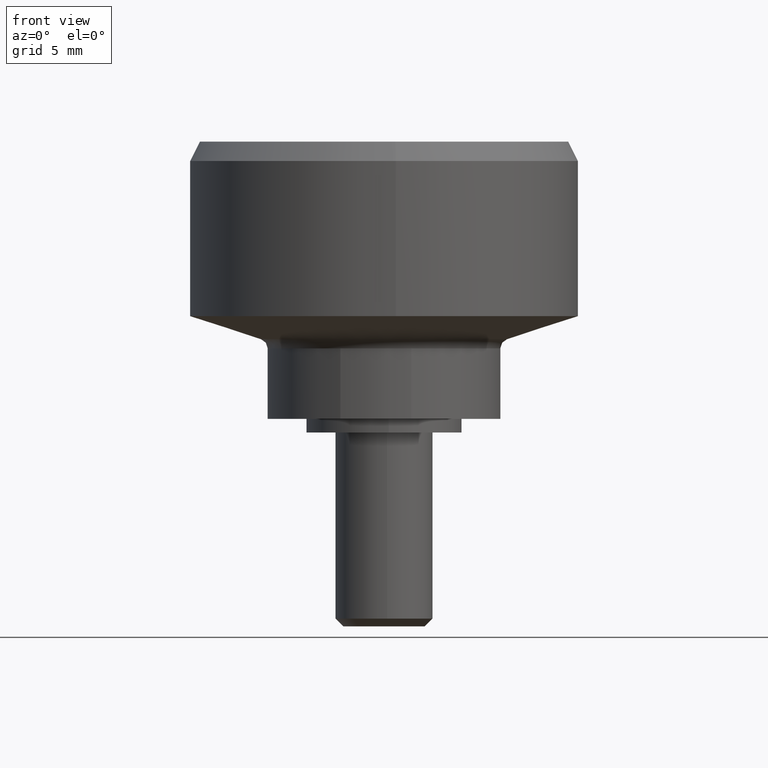
[diagram: clean part render]
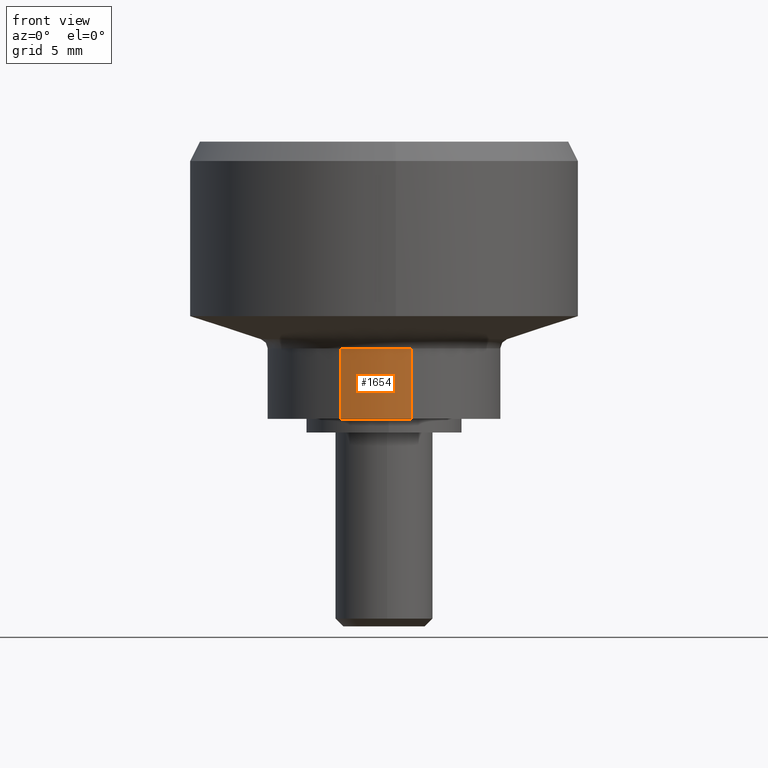
[diagram: same view with one face highlighted and labeled with its STEP entity id]
A machine part, front view. The second image highlights one B-rep face of the part: STEP entity #1654.
In plain terms, the highlighted face is a freeform B-spline surface patch.
Its self-contained STEP definition (entity closure, byte-faithful):
#1465=CARTESIAN_POINT('',(-2.250409667842005,-5.561983128963910,4.336761000009336));
#1466=VERTEX_POINT('',#1465);
#1529=CARTESIAN_POINT('',(1.400665940389359,-5.834221021129725,4.336761000000011));
#1530=VERTEX_POINT('',#1529);
#1544=CARTESIAN_POINT('',(1.400666015609380,-5.834221003071164,0.700004000000106));
#1545=VERTEX_POINT('',#1544);
#1546=CARTESIAN_POINT('',(1.400665940389359,-5.834221021129725,4.336761000000011));
#1547=CARTESIAN_POINT('',(1.400666015609380,-5.834221003071164,0.700004000000106));
#1548=QUASI_UNIFORM_CURVE('',1,(#1546,#1547),.UNSPECIFIED.,.F.,.U.);
#1549=EDGE_CURVE('',#1530,#1545,#1548,.T.);
#1583=CARTESIAN_POINT('',(-2.250410441982353,-5.561982815742546,0.700004000000106));
#1584=VERTEX_POINT('',#1583);
#1598=CARTESIAN_POINT('',(-2.250409667842005,-5.561983128963910,4.336761000009336));
#1599=CARTESIAN_POINT('',(-2.250410441982353,-5.561982815742546,0.700004000000106));
#1600=QUASI_UNIFORM_CURVE('',1,(#1598,#1599),.UNSPECIFIED.,.F.,.U.);
#1601=EDGE_CURVE('',#1466,#1584,#1600,.T.);
#1606=CARTESIAN_POINT('',(1.400672183135433,-5.834219522386058,4.427679925087543));
#1607=CARTESIAN_POINT('',(-0.468478970934370,-6.282963011988304,4.427679925087543));
#1608=CARTESIAN_POINT('',(-2.250411537958607,-5.561982372304211,4.427679925087543));
#1609=CARTESIAN_POINT('',(1.400672183135433,-5.834219522386058,0.606812101872920));
#1610=CARTESIAN_POINT('',(-0.468478970934370,-6.282963011988304,0.606812101872920));
#1611=CARTESIAN_POINT('',(-2.250411537958607,-5.561982372304211,0.606812101872920));
#1619=(BOUNDED_SURFACE()B_SPLINE_SURFACE(2,1,((#1606,#1609),(#1607,#1610),(#1608,#1611)),.UNSPECIFIED.,.F.,.F.,.U.)B_SPLINE_SURFACE_WITH_KNOTS((3,3),(2,2),(0.0,3.949346171659938),(0.0,3.820867823214623),.UNSPECIFIED.)GEOMETRIC_REPRESENTATION_ITEM()RATIONAL_B_SPLINE_SURFACE(((1.0,1.0),(0.882842712474619,0.882842712474619),(0.859411254969543,0.859411254969543)))REPRESENTATION_ITEM('')SURFACE());
#1620=CARTESIAN_POINT('',(1.400665940389359,-5.834221021129724,4.336761000000011));
#1621=CARTESIAN_POINT('',(0.710143542809743,-6.0,4.336760999999999));
#1622=CARTESIAN_POINT('',(0.0,-6.0,4.336761000000000));
#1623=CARTESIAN_POINT('',(-1.167832356823583,-6.0,4.336761000000001));
#1624=CARTESIAN_POINT('',(-2.250409667842005,-5.561983128963910,4.336761000009336));
#1632=(BOUNDED_CURVE()B_SPLINE_CURVE(2,(#1620,#1621,#1622,#1623,#1624),.UNSPECIFIED.,.F.,.U.)B_SPLINE_CURVE_WITH_KNOTS((3,2,3),(0.710110004683507,0.750000000000000,0.813681085114282),.UNSPECIFIED.)CURVE()GEOMETRIC_REPRESENTATION_ITEM()RATIONAL_B_SPLINE_CURVE((0.921445690965409,0.953265963493195,1.0,0.925392968013378,0.888794390059269))REPRESENTATION_ITEM(''));
#1633=EDGE_CURVE('',#1530,#1466,#1632,.T.);
#1634=ORIENTED_EDGE('',*,*,#1633,.T.);
#1635=ORIENTED_EDGE('',*,*,#1601,.T.);
#1636=CARTESIAN_POINT('',(1.400666015609381,-5.834221003071164,0.700004000000106));
#1637=CARTESIAN_POINT('',(0.710143582030257,-6.000000000000001,0.700004000000106));
#1638=CARTESIAN_POINT('',(0.0,-6.0,0.700004000000106));
#1639=CARTESIAN_POINT('',(-1.167832790194913,-6.000000000000001,0.700004000000106));
#1640=CARTESIAN_POINT('',(-2.250410441982353,-5.561982815742546,0.700004000000106));
#1648=(BOUNDED_CURVE()B_SPLINE_CURVE(2,(#1636,#1637,#1638,#1639,#1640),.UNSPECIFIED.,.F.,.U.)B_SPLINE_CURVE_WITH_KNOTS((3,2,3),(0.710110002583382,0.750000000000000,0.813681106982647),.UNSPECIFIED.)CURVE()GEOMETRIC_REPRESENTATION_ITEM()RATIONAL_B_SPLINE_CURVE((0.921445687614866,0.953265961032746,1.0,0.925392942392995,0.888794364923048))REPRESENTATION_ITEM(''));
#1649=EDGE_CURVE('',#1545,#1584,#1648,.T.);
#1650=ORIENTED_EDGE('',*,*,#1649,.F.);
#1651=ORIENTED_EDGE('',*,*,#1549,.F.);
#1652=EDGE_LOOP('',(#1634,#1635,#1650,#1651));
#1653=FACE_OUTER_BOUND('',#1652,.T.);
#1654=ADVANCED_FACE('',(#1653),#1619,.T.);